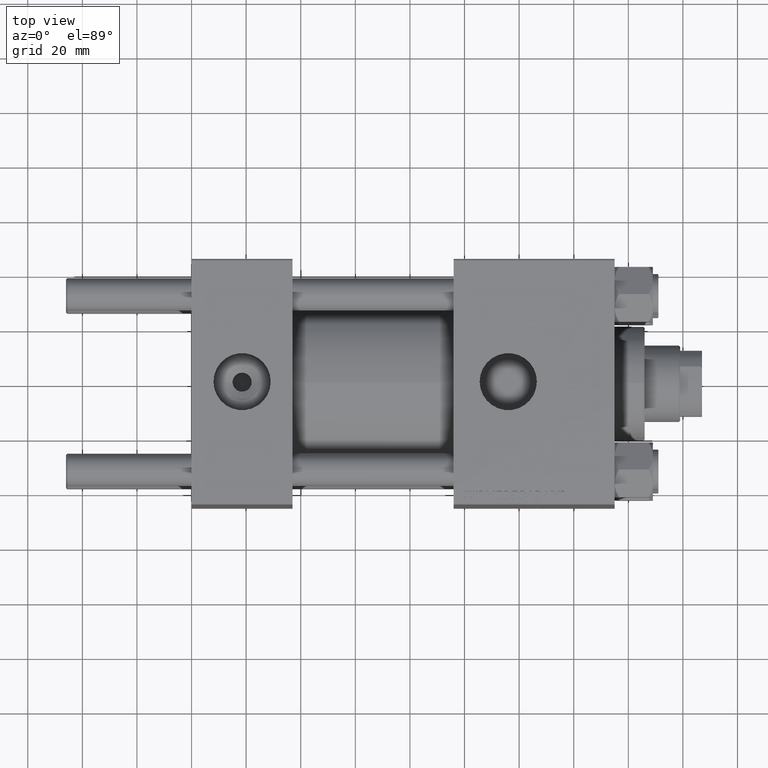
[diagram: clean part render]
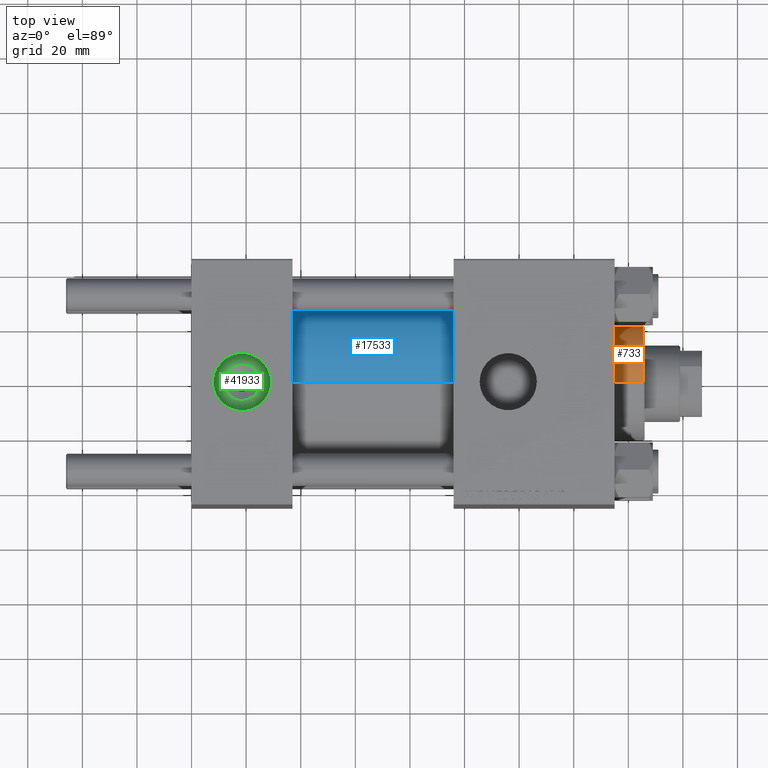
[diagram: same view with three faces highlighted in distinct colors, each labeled with its STEP entity id]
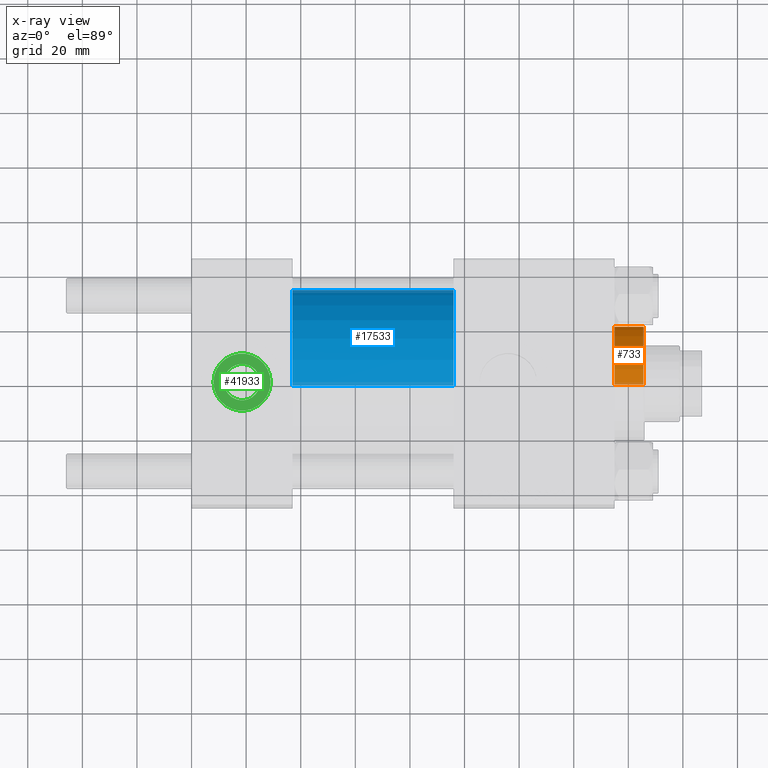
[diagram: x-ray of the same camera — body ghosted, the three highlighted faces saturated]
A machine part, top view with three faces highlighted in distinct colors.
The next image is the same camera in x-ray (body ghosted, the three faces saturated) — at least one of them is partly hidden behind the body in this view.
Their STEP definitions:

[orange] entity #733 — the highlighted cylindrical surface (partial cylindrical patch) has radius 21 mm, axis along (-1, -0, 0).
#733 = ADVANCED_FACE ( 'NONE', ( #23426 ), #23943, .T. ) ;
#1537 = AXIS2_PLACEMENT_3D ( 'NONE', #44151, #3511, #32330 ) ;
#1645 = VECTOR ( 'NONE', #9402, 1000.000000000000000 ) ;
#3511 = DIRECTION ( 'NONE',  ( -0.000000000000000000, -0.000000000000000000, -1.000000000000000000 ) ) ;
#8056 = CIRCLE ( 'NONE', #49954, 21.00000000000000000 ) ;
#9402 = DIRECTION ( 'NONE',  ( -0.000000000000000000, -0.000000000000000000, -1.000000000000000000 ) ) ;
#9614 = CARTESIAN_POINT ( 'NONE',  ( 0.000000000000000000, 0.000000000000000000, 28.69999999999999929 ) ) ;
#11390 = CARTESIAN_POINT ( 'NONE',  ( -21.00000000000000000, 0.000000000000000000, 28.69999999999999929 ) ) ;
#12372 = EDGE_CURVE ( 'NONE', #23450, #32956, #27888, .T. ) ;
#12922 = DIRECTION ( 'NONE',  ( -0.000000000000000000, -0.000000000000000000, -1.000000000000000000 ) ) ;
#13272 = DIRECTION ( 'NONE',  ( 0.000000000000000000, 0.000000000000000000, 1.000000000000000000 ) ) ;
#17528 = EDGE_CURVE ( 'NONE', #32956, #25250, #8056, .T. ) ;
#19682 = DIRECTION ( 'NONE',  ( 1.000000000000000000, 0.000000000000000000, 0.000000000000000000 ) ) ;
#23034 = CARTESIAN_POINT ( 'NONE',  ( 21.00000000000000000, 2.571758278209441661E-15, 28.69999999999999929 ) ) ;
#23134 = EDGE_CURVE ( 'NONE', #33972, #23450, #29220, .T. ) ;
#23426 = FACE_OUTER_BOUND ( 'NONE', #26919, .T. ) ;
#23450 = VERTEX_POINT ( 'NONE', #45565 ) ;
#23943 = CYLINDRICAL_SURFACE ( 'NONE', #1537, 21.00000000000000000 ) ;
#25227 = ORIENTED_EDGE ( 'NONE', *, *, #17528, .T. ) ;
#25250 = VERTEX_POINT ( 'NONE', #11390 ) ;
#25380 = ORIENTED_EDGE ( 'NONE', *, *, #23134, .T. ) ;
#25843 = AXIS2_PLACEMENT_3D ( 'NONE', #43550, #39618, #19682 ) ;
#26919 = EDGE_LOOP ( 'NONE', ( #25380, #29544, #25227, #28918 ) ) ;
#27888 = LINE ( 'NONE', #47822, #37300 ) ;
#28918 = ORIENTED_EDGE ( 'NONE', *, *, #38027, .F. ) ;
#29220 = CIRCLE ( 'NONE', #25843, 21.00000000000000000 ) ;
#29544 = ORIENTED_EDGE ( 'NONE', *, *, #12372, .T. ) ;
#32330 = DIRECTION ( 'NONE',  ( -1.000000000000000000, 0.000000000000000000, 0.000000000000000000 ) ) ;
#32956 = VERTEX_POINT ( 'NONE', #23034 ) ;
#33972 = VERTEX_POINT ( 'NONE', #35578 ) ;
#35578 = CARTESIAN_POINT ( 'NONE',  ( -21.00000000000000000, 0.000000000000000000, 39.19999999999999574 ) ) ;
#37300 = VECTOR ( 'NONE', #12922, 1000.000000000000000 ) ;
#38027 = EDGE_CURVE ( 'NONE', #33972, #25250, #41137, .T. ) ;
#39618 = DIRECTION ( 'NONE',  ( 0.000000000000000000, 0.000000000000000000, -1.000000000000000000 ) ) ;
#41137 = LINE ( 'NONE', #41399, #1645 ) ;
#41399 = CARTESIAN_POINT ( 'NONE',  ( -21.00000000000000000, 0.000000000000000000, 39.69999999999999574 ) ) ;
#43550 = CARTESIAN_POINT ( 'NONE',  ( 0.000000000000000000, 0.000000000000000000, 39.19999999999999574 ) ) ;
#44151 = CARTESIAN_POINT ( 'NONE',  ( 0.000000000000000000, 0.000000000000000000, 39.69999999999999574 ) ) ;
#45565 = CARTESIAN_POINT ( 'NONE',  ( 21.00000000000000000, 2.571758278209441661E-15, 39.19999999999999574 ) ) ;
#47822 = CARTESIAN_POINT ( 'NONE',  ( 21.00000000000000000, 2.571758278209441661E-15, 39.69999999999999574 ) ) ;
#49954 = AXIS2_PLACEMENT_3D ( 'NONE', #9614, #13272, #49986 ) ;
#49986 = DIRECTION ( 'NONE',  ( 1.000000000000000000, 0.000000000000000000, 0.000000000000000000 ) ) ;

[blue] entity #17533 — the highlighted cylindrical surface (partial cylindrical patch) has radius 34.5 mm, axis along (-1, -0, -0).
#852 = DIRECTION ( 'NONE',  ( 1.000000000000000000, 0.000000000000000000, 0.000000000000000000 ) ) ;
#1360 = AXIS2_PLACEMENT_3D ( 'NONE', #13537, #5421, #30039 ) ;
#1373 = DIRECTION ( 'NONE',  ( 0.000000000000000000, 0.000000000000000000, -1.000000000000000000 ) ) ;
#1485 = CYLINDRICAL_SURFACE ( 'NONE', #1360, 34.49999999999999289 ) ;
#2912 = CARTESIAN_POINT ( 'NONE',  ( 37.00000000000000000, 4.225031457058367344E-15, -34.49999999999999289 ) ) ;
#4464 = DIRECTION ( 'NONE',  ( -1.000000000000000000, -0.000000000000000000, -0.000000000000000000 ) ) ;
#5421 = DIRECTION ( 'NONE',  ( -1.000000000000000000, -0.000000000000000000, -0.000000000000000000 ) ) ;
#6557 = CARTESIAN_POINT ( 'NONE',  ( 96.00000000000000000, 4.225031457058367344E-15, -34.49999999999999289 ) ) ;
#10552 = VERTEX_POINT ( 'NONE', #2912 ) ;
#12901 = CARTESIAN_POINT ( 'NONE',  ( 96.00000000000000000, 0.000000000000000000, 0.000000000000000000 ) ) ;
#13537 = CARTESIAN_POINT ( 'NONE',  ( 96.00000000000000000, 0.000000000000000000, 0.000000000000000000 ) ) ;
#14462 = VECTOR ( 'NONE', #4464, 1000.000000000000000 ) ;
#16512 = CARTESIAN_POINT ( 'NONE',  ( 96.00000000000000000, 4.225031457058367344E-15, -34.49999999999999289 ) ) ;
#17533 = ADVANCED_FACE ( 'NONE', ( #17998 ), #1485, .T. ) ;
#17998 = FACE_OUTER_BOUND ( 'NONE', #50643, .T. ) ;
#20090 = ORIENTED_EDGE ( 'NONE', *, *, #42997, .T. ) ;
#23148 = DIRECTION ( 'NONE',  ( 1.000000000000000000, -0.000000000000000000, 0.000000000000000000 ) ) ;
#24046 = CARTESIAN_POINT ( 'NONE',  ( 37.00000000000000000, 0.000000000000000000, 34.49999999999999289 ) ) ;
#24364 = LINE ( 'NONE', #16512, #33591 ) ;
#25242 = ORIENTED_EDGE ( 'NONE', *, *, #50584, .F. ) ;
#25816 = VERTEX_POINT ( 'NONE', #6557 ) ;
#27826 = CIRCLE ( 'NONE', #32867, 34.49999999999999289 ) ;
#29422 = EDGE_CURVE ( 'NONE', #10552, #43744, #43836, .T. ) ;
#30039 = DIRECTION ( 'NONE',  ( 0.000000000000000000, 0.000000000000000000, 1.000000000000000000 ) ) ;
#32867 = AXIS2_PLACEMENT_3D ( 'NONE', #12901, #852, #1373 ) ;
#33591 = VECTOR ( 'NONE', #48508, 1000.000000000000000 ) ;
#37129 = AXIS2_PLACEMENT_3D ( 'NONE', #46273, #23148, #50449 ) ;
#39172 = ORIENTED_EDGE ( 'NONE', *, *, #49469, .F. ) ;
#42997 = EDGE_CURVE ( 'NONE', #25816, #10552, #24364, .T. ) ;
#43744 = VERTEX_POINT ( 'NONE', #24046 ) ;
#43836 = CIRCLE ( 'NONE', #37129, 34.49999999999999289 ) ;
#45044 = VERTEX_POINT ( 'NONE', #45239 ) ;
#45239 = CARTESIAN_POINT ( 'NONE',  ( 96.00000000000000000, 0.000000000000000000, 34.49999999999999289 ) ) ;
#46273 = CARTESIAN_POINT ( 'NONE',  ( 37.00000000000000000, 0.000000000000000000, 0.000000000000000000 ) ) ;
#47244 = LINE ( 'NONE', #47750, #14462 ) ;
#47750 = CARTESIAN_POINT ( 'NONE',  ( 96.00000000000000000, 0.000000000000000000, 34.49999999999999289 ) ) ;
#48508 = DIRECTION ( 'NONE',  ( -1.000000000000000000, -0.000000000000000000, -0.000000000000000000 ) ) ;
#48670 = ORIENTED_EDGE ( 'NONE', *, *, #29422, .T. ) ;
#49469 = EDGE_CURVE ( 'NONE', #25816, #45044, #27826, .T. ) ;
#50449 = DIRECTION ( 'NONE',  ( 0.000000000000000000, 0.000000000000000000, 1.000000000000000000 ) ) ;
#50584 = EDGE_CURVE ( 'NONE', #45044, #43744, #47244, .T. ) ;
#50643 = EDGE_LOOP ( 'NONE', ( #39172, #20090, #48670, #25242 ) ) ;

[green] entity #41933 — the highlighted planar face has unit normal (0, 0, 1).
#2758 = AXIS2_PLACEMENT_3D ( 'NONE', #15855, #19798, #7227 ) ;
#4687 = ORIENTED_EDGE ( 'NONE', *, *, #45746, .T. ) ;
#5678 = FACE_OUTER_BOUND ( 'NONE', #9328, .T. ) ;
#6645 = VERTEX_POINT ( 'NONE', #18809 ) ;
#7222 = DIRECTION ( 'NONE',  ( -0.000000000000000000, -0.000000000000000000, -1.000000000000000000 ) ) ;
#7227 = DIRECTION ( 'NONE',  ( 1.000000000000000000, 0.000000000000000000, 0.000000000000000000 ) ) ;
#7634 = EDGE_LOOP ( 'NONE', ( #47108, #7785 ) ) ;
#7785 = ORIENTED_EDGE ( 'NONE', *, *, #21498, .T. ) ;
#9328 = EDGE_LOOP ( 'NONE', ( #50481, #4687 ) ) ;
#9619 = FACE_BOUND ( 'NONE', #7634, .T. ) ;
#11312 = VERTEX_POINT ( 'NONE', #38656 ) ;
#12764 = DIRECTION ( 'NONE',  ( 0.000000000000000000, 0.000000000000000000, 1.000000000000000000 ) ) ;
#13211 = DIRECTION ( 'NONE',  ( -0.000000000000000000, -0.000000000000000000, -1.000000000000000000 ) ) ;
#13616 = DIRECTION ( 'NONE',  ( 1.000000000000000000, 0.000000000000000000, 0.000000000000000000 ) ) ;
#15855 = CARTESIAN_POINT ( 'NONE',  ( 18.50000000000000000, -8.673617379884038628E-15, 34.20000000000000995 ) ) ;
#17364 = AXIS2_PLACEMENT_3D ( 'NONE', #33541, #49547, #13616 ) ;
#18268 = CIRCLE ( 'NONE', #24946, 6.640000000000062741 ) ;
#18809 = CARTESIAN_POINT ( 'NONE',  ( 8.019999999999999574, -7.390187534377611561E-15, 34.20000000000000995 ) ) ;
#19279 = CARTESIAN_POINT ( 'NONE',  ( 18.50000000000000000, -8.673617379884038628E-15, 34.20000000000000995 ) ) ;
#19798 = DIRECTION ( 'NONE',  ( 0.000000000000000000, 0.000000000000000000, 1.000000000000000000 ) ) ;
#20302 = CIRCLE ( 'NONE', #2758, 10.48000000000000043 ) ;
#20319 = EDGE_CURVE ( 'NONE', #11312, #6645, #45026, .T. ) ;
#20630 = DIRECTION ( 'NONE',  ( 1.000000000000000000, 0.000000000000000000, -0.000000000000000000 ) ) ;
#21343 = DIRECTION ( 'NONE',  ( 1.000000000000000000, 0.000000000000000000, 0.000000000000000000 ) ) ;
#21498 = EDGE_CURVE ( 'NONE', #28342, #34360, #24087, .T. ) ;
#21598 = CARTESIAN_POINT ( 'NONE',  ( 18.50000000000000000, -8.673617379884038628E-15, 34.20000000000000995 ) ) ;
#21728 = EDGE_CURVE ( 'NONE', #34360, #28342, #18268, .T. ) ;
#24087 = CIRCLE ( 'NONE', #35822, 6.640000000000062741 ) ;
#24946 = AXIS2_PLACEMENT_3D ( 'NONE', #21598, #13211, #21343 ) ;
#28342 = VERTEX_POINT ( 'NONE', #45407 ) ;
#29359 = AXIS2_PLACEMENT_3D ( 'NONE', #36891, #12764, #20630 ) ;
#29534 = PLANE ( 'NONE',  #29359 ) ;
#33541 = CARTESIAN_POINT ( 'NONE',  ( 18.50000000000000000, -8.673617379884038628E-15, 34.20000000000000995 ) ) ;
#33903 = CARTESIAN_POINT ( 'NONE',  ( 25.14000000000006096, -8.673617379884038628E-15, 34.20000000000000995 ) ) ;
#34360 = VERTEX_POINT ( 'NONE', #33903 ) ;
#35822 = AXIS2_PLACEMENT_3D ( 'NONE', #19279, #7222, #47346 ) ;
#36891 = CARTESIAN_POINT ( 'NONE',  ( 18.50000000000000000, -8.673617379884038628E-15, 34.20000000000000995 ) ) ;
#38656 = CARTESIAN_POINT ( 'NONE',  ( 28.98000000000000043, -8.673617379884038628E-15, 34.20000000000000995 ) ) ;
#41933 = ADVANCED_FACE ( 'NONE', ( #9619, #5678 ), #29534, .T. ) ;
#45026 = CIRCLE ( 'NONE', #17364, 10.48000000000000043 ) ;
#45407 = CARTESIAN_POINT ( 'NONE',  ( 11.85999999999993726, -7.860451905250187841E-15, 34.20000000000000995 ) ) ;
#45746 = EDGE_CURVE ( 'NONE', #6645, #11312, #20302, .T. ) ;
#47108 = ORIENTED_EDGE ( 'NONE', *, *, #21728, .T. ) ;
#47346 = DIRECTION ( 'NONE',  ( 1.000000000000000000, 0.000000000000000000, 0.000000000000000000 ) ) ;
#49547 = DIRECTION ( 'NONE',  ( 0.000000000000000000, 0.000000000000000000, 1.000000000000000000 ) ) ;
#50481 = ORIENTED_EDGE ( 'NONE', *, *, #20319, .T. ) ;